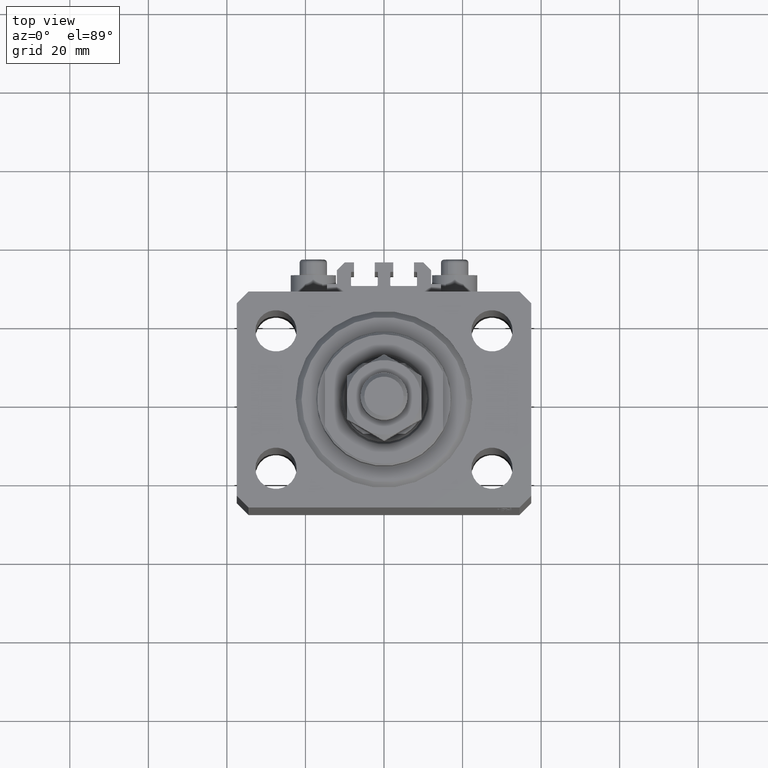
[diagram: clean part render]
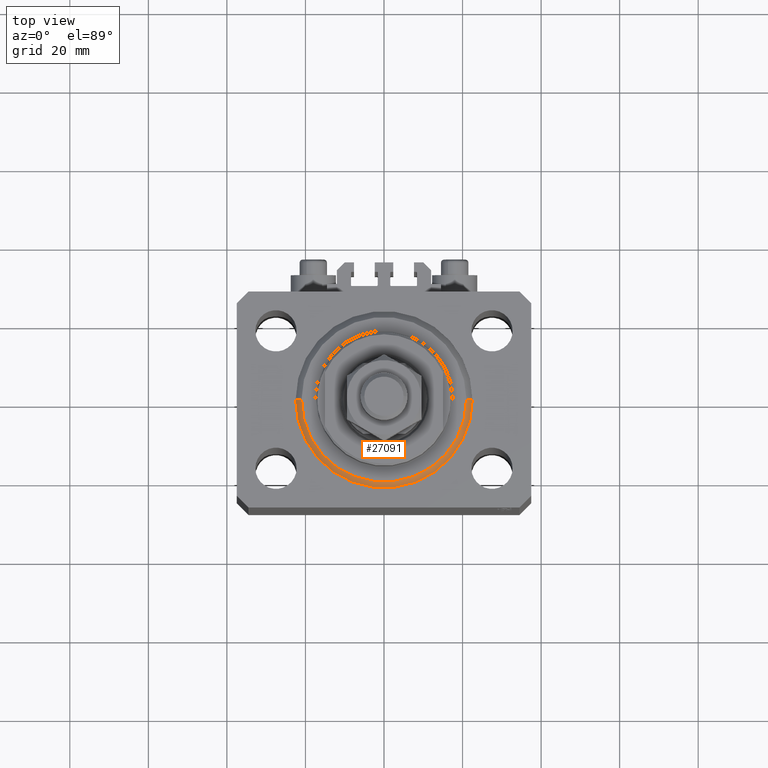
[diagram: same view with one face highlighted and labeled with its STEP entity id]
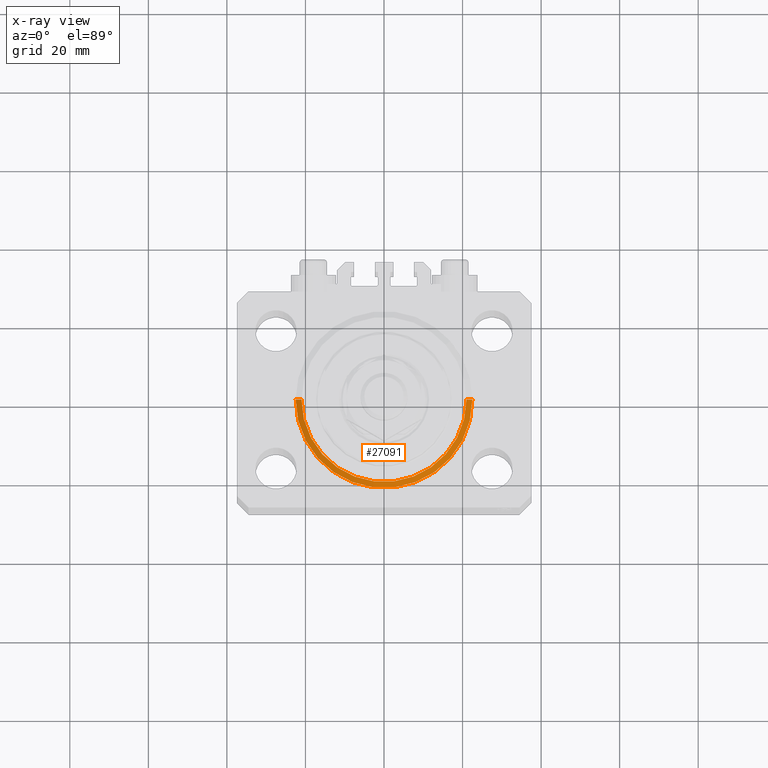
[diagram: x-ray of the same camera — body ghosted, the highlighted face saturated]
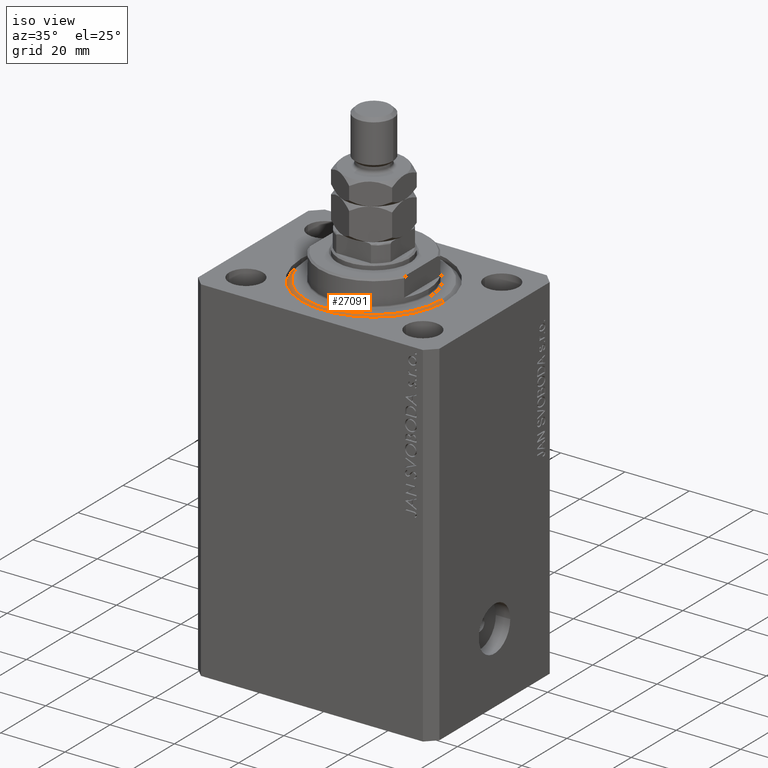
[diagram: same view with one face highlighted and labeled with its STEP entity id]
A machine part, top view. The second image highlights one B-rep face of the part: STEP entity #27091.
The next image is the same camera in x-ray: the body ghosted, the highlighted face saturated — about 0% of this face is hidden behind the body in this view.
A second angle (iso view) of the same face is appended — the face is thin or edge-on in the first view.
In plain terms, the highlighted conical surface has half-angle 45 deg.
Its self-contained STEP definition (entity closure, byte-faithful):
#1692 = DIRECTION ( 'NONE',  ( 1.000000000000000000, 0.000000000000000000, 0.000000000000000000 ) ) ;
#3802 = ORIENTED_EDGE ( 'NONE', *, *, #33150, .F. ) ;
#5101 = CARTESIAN_POINT ( 'NONE',  ( -20.99999999999998934, 2.663606788145492628E-15, 0.000000000000000000 ) ) ;
#7445 = AXIS2_PLACEMENT_3D ( 'NONE', #18380, #33468, #14684 ) ;
#7493 = ORIENTED_EDGE ( 'NONE', *, *, #32416, .T. ) ;
#7498 = LINE ( 'NONE', #37907, #48186 ) ;
#7603 = ORIENTED_EDGE ( 'NONE', *, *, #46660, .F. ) ;
#8532 = CARTESIAN_POINT ( 'NONE',  ( 20.99999999999998934, 0.000000000000000000, 0.000000000000000000 ) ) ;
#9357 = DIRECTION ( 'NONE',  ( -0.000000000000000000, -0.000000000000000000, 1.000000000000000000 ) ) ;
#9495 = AXIS2_PLACEMENT_3D ( 'NONE', #39030, #9357, #1692 ) ;
#10776 = DIRECTION ( 'NONE',  ( -0.7071067811865500152, 8.659560562354963673E-17, 0.7071067811865451302 ) ) ;
#14523 = CIRCLE ( 'NONE', #7445, 20.99999999999998934 ) ;
#14684 = DIRECTION ( 'NONE',  ( 1.000000000000000000, 0.000000000000000000, 0.000000000000000000 ) ) ;
#17305 = VERTEX_POINT ( 'NONE', #39962 ) ;
#17320 = AXIS2_PLACEMENT_3D ( 'NONE', #37404, #39022, #27895 ) ;
#18380 = CARTESIAN_POINT ( 'NONE',  ( 0.000000000000000000, 0.000000000000000000, 0.000000000000000000 ) ) ;
#18420 = LINE ( 'NONE', #21893, #33855 ) ;
#21893 = CARTESIAN_POINT ( 'NONE',  ( -22.50000000000000355, 2.755455298081545172E-15, 1.500000000000001332 ) ) ;
#22328 = FACE_OUTER_BOUND ( 'NONE', #46683, .T. ) ;
#25805 = EDGE_CURVE ( 'NONE', #36579, #17305, #18420, .T. ) ;
#26014 = CONICAL_SURFACE ( 'NONE', #17320, 22.50000000000000355, 0.7853981633974517207 ) ;
#26782 = DIRECTION ( 'NONE',  ( 0.7071067811865500152, 0.000000000000000000, 0.7071067811865451302 ) ) ;
#27091 = ADVANCED_FACE ( 'NONE', ( #22328 ), #26014, .T. ) ;
#27613 = ORIENTED_EDGE ( 'NONE', *, *, #25805, .F. ) ;
#27895 = DIRECTION ( 'NONE',  ( 1.000000000000000000, 0.000000000000000000, 0.000000000000000000 ) ) ;
#28627 = VERTEX_POINT ( 'NONE', #8532 ) ;
#30309 = VERTEX_POINT ( 'NONE', #43110 ) ;
#32348 = CIRCLE ( 'NONE', #9495, 22.50000000000000355 ) ;
#32416 = EDGE_CURVE ( 'NONE', #28627, #30309, #7498, .T. ) ;
#33150 = EDGE_CURVE ( 'NONE', #17305, #30309, #32348, .T. ) ;
#33468 = DIRECTION ( 'NONE',  ( -0.000000000000000000, -0.000000000000000000, -1.000000000000000000 ) ) ;
#33855 = VECTOR ( 'NONE', #10776, 1000.000000000000114 ) ;
#36579 = VERTEX_POINT ( 'NONE', #5101 ) ;
#37404 = CARTESIAN_POINT ( 'NONE',  ( 0.000000000000000000, 0.000000000000000000, 1.500000000000001332 ) ) ;
#37907 = CARTESIAN_POINT ( 'NONE',  ( 22.50000000000000355, 0.000000000000000000, 1.500000000000001332 ) ) ;
#39022 = DIRECTION ( 'NONE',  ( -0.000000000000000000, -0.000000000000000000, 1.000000000000000000 ) ) ;
#39030 = CARTESIAN_POINT ( 'NONE',  ( 0.000000000000000000, 0.000000000000000000, 1.500000000000001332 ) ) ;
#39962 = CARTESIAN_POINT ( 'NONE',  ( -22.50000000000000355, 0.000000000000000000, 1.500000000000001332 ) ) ;
#43110 = CARTESIAN_POINT ( 'NONE',  ( 22.50000000000000355, 2.755455298081545172E-15, 1.500000000000001332 ) ) ;
#46660 = EDGE_CURVE ( 'NONE', #28627, #36579, #14523, .T. ) ;
#46683 = EDGE_LOOP ( 'NONE', ( #27613, #7603, #7493, #3802 ) ) ;
#48186 = VECTOR ( 'NONE', #26782, 1000.000000000000114 ) ;